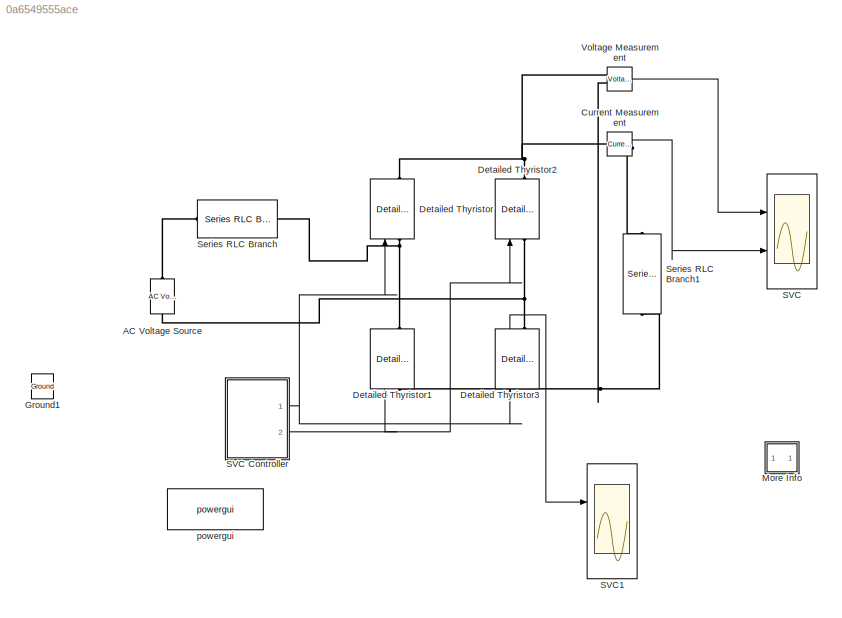
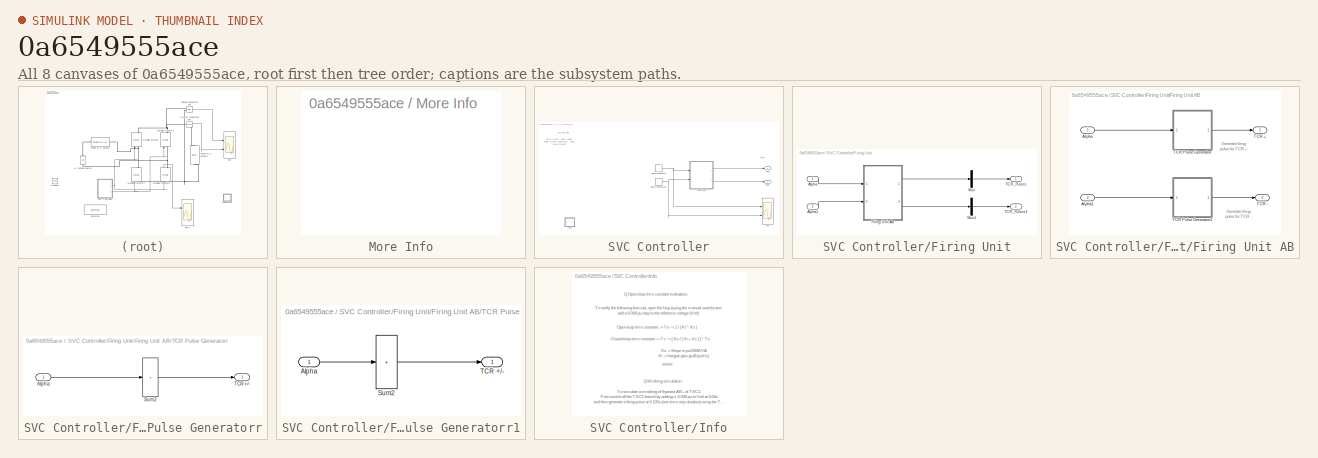
[diagram: thumbnail index - all 8 canvases of the model, root first then tree order]
MODEL slx_0a6549555ace
KIND model
CONFIG AbsTol = 1e-4
CONFIG EnableMultiTasking = off
CONFIG FixedStep = Ts
CONFIG MaxStep = Ts
CONFIG MinStep = auto
CONFIG PreLoadFcn = Ts=50e-6;  
CONFIG RelTol = 1e-4
CONFIG SampleTimeConstraint = Unconstrained
CONFIG Solver = VariableStepAuto
CONFIG SolverName = VariableStepAuto
CONFIG StartTime = 0.0
CONFIG StopTime = 0.6
BLOCK [Reference] AC Voltage Source  REF=powerlib/Electrical
Sources/AC Voltage Source
  Ports = [0, 0, 0, 0, 0, 1, 1]
  SourceBlock = powerlib/Electrical\nSources/AC Voltage Source
  SourceProductBaseCode = PS
  SourceType = AC Voltage Source
BLOCK [Reference] Current Measurement  REF=powerlib/Measurements/Current Measurement
  Ports = [0, 1, 0, 0, 0, 1, 1]
  SourceBlock = powerlib/Measurements/Current Measurement
  SourceProductBaseCode = PS
  SourceType = Current Measurement
  UserDataPersistent = on
BLOCK [Reference] Detailed Thyristor  REF=powerlib/Power
Electronics/Detailed Thyristor
  Ports = [1, 1, 0, 0, 0, 1, 1]
  SourceBlock = powerlib/Power\nElectronics/Detailed Thyristor
  SourceProductBaseCode = PS
  SourceType = Detailed Thyristor
BLOCK [Reference] Detailed Thyristor1  REF=powerlib/Power
Electronics/Detailed Thyristor
  Ports = [1, 1, 0, 0, 0, 1, 1]
  SourceBlock = powerlib/Power\nElectronics/Detailed Thyristor
  SourceProductBaseCode = PS
  SourceType = Detailed Thyristor
BLOCK [Reference] Detailed Thyristor2  REF=powerlib/Power
Electronics/Detailed Thyristor
  Ports = [1, 1, 0, 0, 0, 1, 1]
  SourceBlock = powerlib/Power\nElectronics/Detailed Thyristor
  SourceProductBaseCode = PS
  SourceType = Detailed Thyristor
BLOCK [Reference] Detailed Thyristor3  REF=powerlib/Power
Electronics/Detailed Thyristor
  Ports = [1, 1, 0, 0, 0, 1, 1]
  SourceBlock = powerlib/Power\nElectronics/Detailed Thyristor
  SourceProductBaseCode = PS
  SourceType = Detailed Thyristor
BLOCK [Reference] Ground1  REF=powerlib/Elements/Ground
  Ports = [0, 0, 0, 0, 0, 1]
  SourceBlock = powerlib/Elements/Ground
  SourceProductBaseCode = PS
  SourceType = Ground
BLOCK [SubSystem] More Info
  OpenFcn = showdemo(bdroot(gcb))
  Ports = []
  RequestExecContextInheritance = off
BLOCK [Scope] SVC
  Floating = off
  NumInputPorts = 2
  Ports = [2]
  ScopeSpecificationString = Simulink.scopes.TimeScopeBlockCfg('CurrentConfiguration', extmgr.ConfigurationSet(extmgr.Configuration('Core','General UI',true),extmgr.Configuration('Core','Source UI',true),extmgr.Configuration('Sources','WiredSimulink',true,'DataLogging',true,'DataLoggingVariableName','VIabc_Prim','DataLoggingSaveFormat','StructureWithTime','SampleTime','Ts','DataLoggingDecimation','1'),extmgr.Configuration('Vi...<+2355ch>
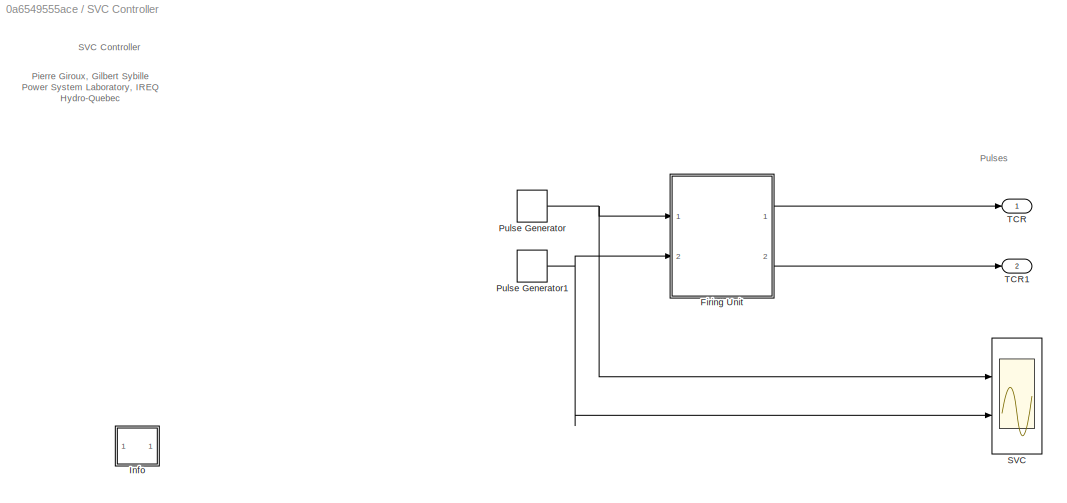
BLOCK [SubSystem] SVC Controller
  Ports = [0, 2]
  RequestExecContextInheritance = off
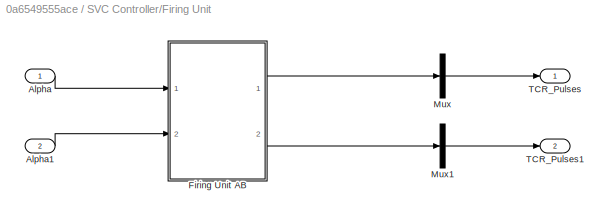
BLOCK [SubSystem] SVC Controller/Firing Unit
  Ports = [2, 2]
  RequestExecContextInheritance = off
BLOCK [Inport] SVC Controller/Firing Unit/Alpha
  PortDimensions = 1
BLOCK [Inport] SVC Controller/Firing Unit/Alpha1
  Port = 2
  PortDimensions = 1
BLOCK [SubSystem] SVC Controller/Firing Unit/Firing Unit AB
  Ports = [2, 2]
  RequestExecContextInheritance = off
BLOCK [Inport] SVC Controller/Firing Unit/Firing Unit AB/Alpha
  PortDimensions = 1
BLOCK [Inport] SVC Controller/Firing Unit/Firing Unit AB/Alpha1
  Port = 2
  PortDimensions = 1
BLOCK [Outport] SVC Controller/Firing Unit/Firing Unit AB/TCR +
  VectorParamsAs1DForOutWhenUnconnected = off
BLOCK [Outport] SVC Controller/Firing Unit/Firing Unit AB/TCR -
  Port = 2
  VectorParamsAs1DForOutWhenUnconnected = off
BLOCK [SubSystem] SVC Controller/Firing Unit/Firing Unit AB/TCR Pulse Generatorr
  Ports = [1, 1]
  RequestExecContextInheritance = off
BLOCK [Inport] SVC Controller/Firing Unit/Firing Unit AB/TCR Pulse Generatorr/Alpha
  PortDimensions = 1
BLOCK [Sum] SVC Controller/Firing Unit/Firing Unit AB/TCR Pulse Generatorr/Sum2
  IconShape = rectangular
  InputSameDT = on
  Inputs = +
  OutDataTypeStr = Inherit: Same as first input
  Ports = [1, 1]
  SaturateOnIntegerOverflow = on
BLOCK [Outport] SVC Controller/Firing Unit/Firing Unit AB/TCR Pulse Generatorr/TCR +//-
  VectorParamsAs1DForOutWhenUnconnected = off
BLOCK [SubSystem] SVC Controller/Firing Unit/Firing Unit AB/TCR Pulse Generatorr1
  Ports = [1, 1]
  RequestExecContextInheritance = off
BLOCK [Inport] SVC Controller/Firing Unit/Firing Unit AB/TCR Pulse Generatorr1/Alpha
  PortDimensions = 1
BLOCK [Sum] SVC Controller/Firing Unit/Firing Unit AB/TCR Pulse Generatorr1/Sum2
  IconShape = rectangular
  InputSameDT = on
  Inputs = +
  OutDataTypeStr = Inherit: Same as first input
  Ports = [1, 1]
  SaturateOnIntegerOverflow = on
BLOCK [Outport] SVC Controller/Firing Unit/Firing Unit AB/TCR Pulse Generatorr1/TCR +//-
  VectorParamsAs1DForOutWhenUnconnected = off
BLOCK [Mux] SVC Controller/Firing Unit/Mux
  DisplayOption = bar
  Inputs = 1
  Ports = [1, 1]
BLOCK [Mux] SVC Controller/Firing Unit/Mux1
  DisplayOption = bar
  Inputs = 1
  Ports = [1, 1]
BLOCK [Outport] SVC Controller/Firing Unit/TCR_Pulses
  VectorParamsAs1DForOutWhenUnconnected = off
BLOCK [Outport] SVC Controller/Firing Unit/TCR_Pulses1
  Port = 2
  VectorParamsAs1DForOutWhenUnconnected = off
BLOCK [SubSystem] SVC Controller/Info
  Ports = []
  RequestExecContextInheritance = off
BLOCK [DiscretePulseGenerator] SVC Controller/Pulse Generator
  Amplitude = 10
  Period = 16.666e-3
  PhaseDelay = 2.58e-3
  Ports = [0, 1]
  PulseType = Time based
  PulseWidth = 10
  VectorParams1D = off
BLOCK [DiscretePulseGenerator] SVC Controller/Pulse Generator1
  Amplitude = 10
  Period = 16.666e-3
  PhaseDelay = 10.913e-3
  Ports = [0, 1]
  PulseType = Time based
  PulseWidth = 10
  VectorParams1D = off
BLOCK [Scope] SVC Controller/SVC
  Floating = off
  NumInputPorts = 2
  Ports = [2]
  ScopeSpecificationString = Simulink.scopes.TimeScopeBlockCfg('CurrentConfiguration', extmgr.ConfigurationSet(extmgr.Configuration('Core','General UI',true),extmgr.Configuration('Core','Source UI',true),extmgr.Configuration('Sources','WiredSimulink',true,'DataLogging',true,'DataLoggingVariableName','ScopeData2','DataLoggingSaveFormat','StructureWithTime','SampleTime','Ts','DataLoggingDecimation','1'),extmgr.Configuration('Vi...<+1679ch>
BLOCK [Outport] SVC Controller/TCR
  VectorParamsAs1DForOutWhenUnconnected = off
BLOCK [Outport] SVC Controller/TCR1
  Port = 2
  VectorParamsAs1DForOutWhenUnconnected = off
BLOCK [Scope] SVC1
  Floating = off
  NumInputPorts = 2
  Ports = [2]
  ScopeSpecificationString = Simulink.scopes.TimeScopeBlockCfg('CurrentConfiguration', extmgr.ConfigurationSet(extmgr.Configuration('Core','General UI',true),extmgr.Configuration('Core','Source UI',true),extmgr.Configuration('Sources','WiredSimulink',true,'DataLogging',true,'DataLoggingVariableName','ScopeData1','DataLoggingSaveFormat','StructureWithTime','SampleTime','Ts','DataLoggingDecimation','1'),extmgr.Configuration('Vi...<+2404ch>
BLOCK [Reference] Series RLC Branch  REF=powerlib/Elements/Series RLC Branch
  Ports = [0, 0, 0, 0, 0, 1, 1]
  SourceBlock = powerlib/Elements/Series RLC Branch
  SourceProductBaseCode = PS
  SourceType = Series RLC Branch
BLOCK [Reference] Series RLC Branch1  REF=powerlib/Elements/Series RLC Branch
  Ports = [0, 0, 0, 0, 0, 1, 1]
  SourceBlock = powerlib/Elements/Series RLC Branch
  SourceProductBaseCode = PS
  SourceType = Series RLC Branch
BLOCK [Reference] Voltage Measurement  REF=powerlib/Measurements/Voltage Measurement
  Ports = [0, 1, 0, 0, 0, 2]
  SourceBlock = powerlib/Measurements/Voltage Measurement
  SourceProductBaseCode = PS
  SourceType = Voltage Measurement
  UserDataPersistent = on
BLOCK [Reference] powergui  REF=powerlib/powergui
  Ports = []
  Priority = 2
  SourceBlock = powerlib/powergui
  SourceProductBaseCode = PS
  SourceType = PSB option menu block
ANNOTATION SVC Controller: Pierre Giroux, Gilbert Sybille Power System Laboratory, IREQ Hydro-Quebec
ANNOTATION SVC Controller: Pulses
ANNOTATION SVC Controller: SVC Controller
ANNOTATION SVC Controller/Firing Unit/Firing Unit AB: Generate firing pulse for TCR +
ANNOTATION SVC Controller/Firing Unit/Firing Unit AB: Generate firing pulse for TCR -
ANNOTATION SVC Controller/Info: 1) Open-loop time constant evaluation:
ANNOTATION SVC Controller/Info: 2) Misfiring simulation:
ANNOTATION SVC Controller/Info: Closed-loop time constant --> Tc ~= [ Xs / ( Xr + Xs ) ] * To
ANNOTATION SVC Controller/Info: Open-loop time constant --> To ~= 1 / ( Ki * Xs )
ANNOTATION SVC Controller/Info: To simulate a misfiring of thyristor AB+ of TSC1: First switch off the TSC1 branch by adding a -0.008 pu to Vref at 0.04s and then generate a firing pulse at 0.105s (one time step duration) using the Timer block
ANNOTATION SVC Controller/Info: To verify the following formula, open the loop (using the manual switch) and add a 0.008 pu step to the reference voltage (Vref)
ANNOTATION SVC Controller/Info: Xs -> Slope in pu/100MVA Ki -> Integral gain (puB/puV/s)
ANNOTATION SVC Controller/Info: where:
LINE Current Measurement:1 -> SVC:2
LINE Detailed Thyristor3:1 -> SVC1:1
LINE SVC Controller/Firing Unit/Alpha1:1 -> SVC Controller/Firing Unit/Firing Unit AB:2
LINE SVC Controller/Firing Unit/Alpha:1 -> SVC Controller/Firing Unit/Firing Unit AB:1
LINE SVC Controller/Firing Unit/Firing Unit AB/Alpha1:1 -> SVC Controller/Firing Unit/Firing Unit AB/TCR Pulse Generatorr1:1
LINE SVC Controller/Firing Unit/Firing Unit AB/Alpha:1 -> SVC Controller/Firing Unit/Firing Unit AB/TCR Pulse Generatorr:1
LINE SVC Controller/Firing Unit/Firing Unit AB/TCR Pulse Generatorr/Alpha:1 -> SVC Controller/Firing Unit/Firing Unit AB/TCR Pulse Generatorr/Sum2:1
LINE SVC Controller/Firing Unit/Firing Unit AB/TCR Pulse Generatorr/Sum2:1 -> SVC Controller/Firing Unit/Firing Unit AB/TCR Pulse Generatorr/TCR +//-:1
LINE SVC Controller/Firing Unit/Firing Unit AB/TCR Pulse Generatorr1/Alpha:1 -> SVC Controller/Firing Unit/Firing Unit AB/TCR Pulse Generatorr1/Sum2:1
LINE SVC Controller/Firing Unit/Firing Unit AB/TCR Pulse Generatorr1/Sum2:1 -> SVC Controller/Firing Unit/Firing Unit AB/TCR Pulse Generatorr1/TCR +//-:1
LINE SVC Controller/Firing Unit/Firing Unit AB/TCR Pulse Generatorr1:1 -> SVC Controller/Firing Unit/Firing Unit AB/TCR -:1
LINE SVC Controller/Firing Unit/Firing Unit AB/TCR Pulse Generatorr:1 -> SVC Controller/Firing Unit/Firing Unit AB/TCR +:1
LINE SVC Controller/Firing Unit/Firing Unit AB:1 -> SVC Controller/Firing Unit/Mux:1
LINE SVC Controller/Firing Unit/Firing Unit AB:2 -> SVC Controller/Firing Unit/Mux1:1
LINE SVC Controller/Firing Unit/Mux1:1 -> SVC Controller/Firing Unit/TCR_Pulses1:1
LINE SVC Controller/Firing Unit/Mux:1 -> SVC Controller/Firing Unit/TCR_Pulses:1
LINE SVC Controller/Firing Unit:1 -> SVC Controller/TCR:1
LINE SVC Controller/Firing Unit:2 -> SVC Controller/TCR1:1
NET SVC Controller/Pulse Generator1:1 -> SVC Controller/Firing Unit:2, SVC Controller/SVC:2
NET SVC Controller/Pulse Generator:1 -> SVC Controller/Firing Unit:1, SVC Controller/SVC:1
NET SVC Controller:1 -> Detailed Thyristor3:1, Detailed Thyristor:1
NET SVC Controller:2 -> Detailed Thyristor1:1, Detailed Thyristor2:1
LINE Voltage Measurement:1 -> SVC:1
PNET net1: AC Voltage Source:LConn1 -- Detailed Thyristor2:LConn1 -- Detailed Thyristor3:RConn1
PLINE AC Voltage Source:RConn1 -- Series RLC Branch:LConn1
PNET net2: Current Measurement:LConn1 -- Detailed Thyristor2:RConn1 -- Detailed Thyristor:RConn1 -- Voltage Measurement:LConn1
PLINE Current Measurement:RConn1 -- Series RLC Branch1:LConn1
PNET net3: Detailed Thyristor1:LConn1 -- Detailed Thyristor3:LConn1 -- Series RLC Branch1:RConn1 -- Voltage Measurement:LConn2
PNET net4: Detailed Thyristor1:RConn1 -- Detailed Thyristor:LConn1 -- Series RLC Branch:RConn1
note: NET lines group one-source signal fan-out (src -> all destinations, sorted); 1:1 wires keep LINE; PNET lines group multi-terminal physical nets as a canonical sorted terminal list (undirected conserving connections); 2-terminal nets keep the pairwise PLINE form
